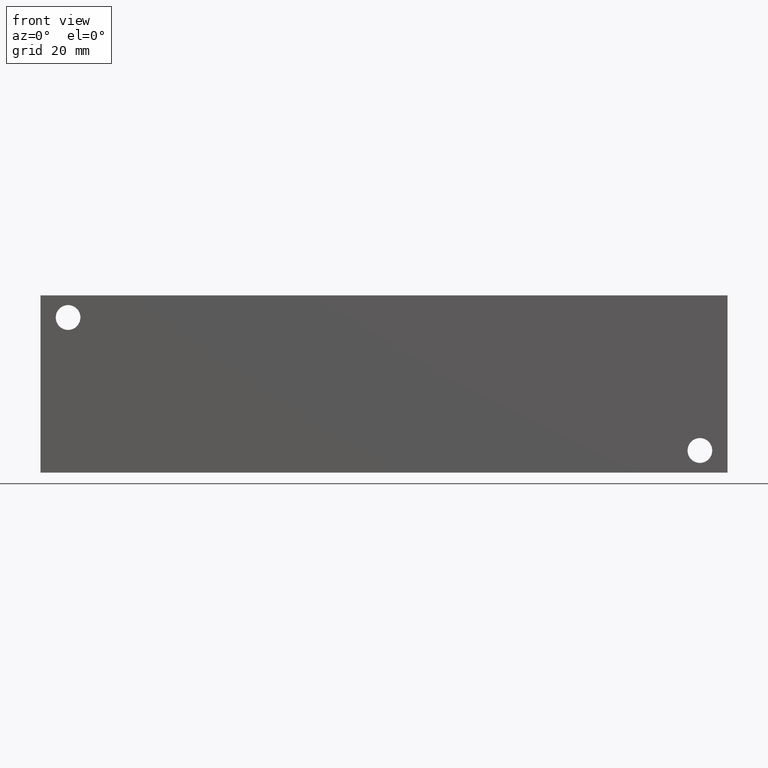
[diagram: clean part render]
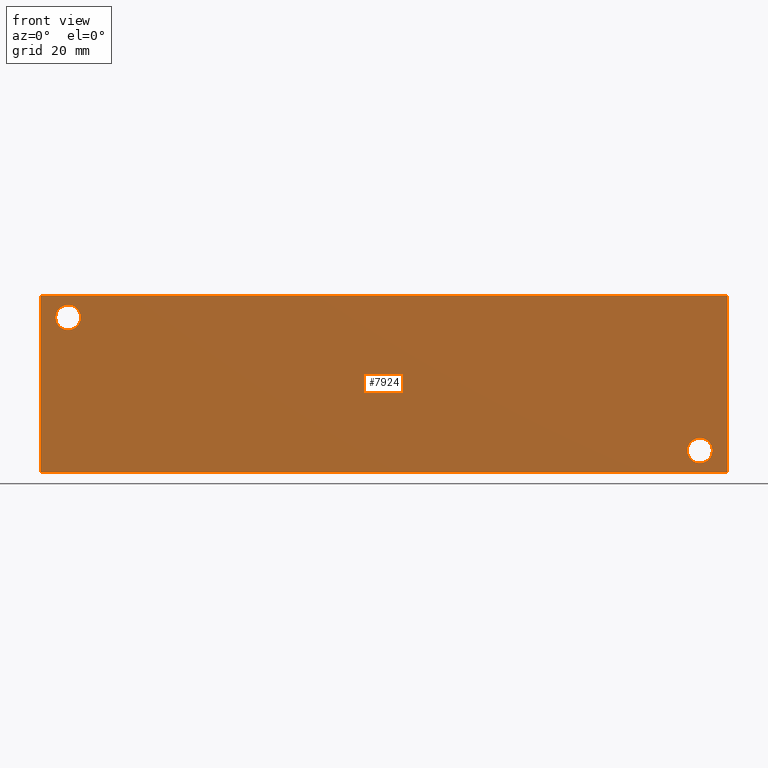
[diagram: same view with one face highlighted and labeled with its STEP entity id]
A machine part, front view. The second image highlights one B-rep face of the part: STEP entity #7924.
In plain terms, the highlighted planar face has unit normal (0, -1, 0).
Its self-contained STEP definition (entity closure, byte-faithful):
#94=CIRCLE('',#8155,3.5687);
#95=CIRCLE('',#8156,3.5687);
#97=CIRCLE('',#8164,3.5687);
#98=CIRCLE('',#8165,3.5687);
#261=FACE_BOUND('',#1347,.T.);
#262=FACE_BOUND('',#1348,.T.);
#486=PLANE('',#8358);
#892=FACE_OUTER_BOUND('',#1346,.T.);
#1346=EDGE_LOOP('',(#7058,#7059,#7060,#7061));
#1347=EDGE_LOOP('',(#7062,#7063));
#1348=EDGE_LOOP('',(#7064,#7065));
#1624=LINE('',#12427,#2343);
#2068=LINE('',#13751,#2787);
#2073=LINE('',#13760,#2792);
#2074=LINE('',#13762,#2793);
#2343=VECTOR('',#8755,10.);
#2787=VECTOR('',#9905,10.);
#2792=VECTOR('',#9914,10.);
#2793=VECTOR('',#9917,10.);
#3372=VERTEX_POINT('',#12425);
#3373=VERTEX_POINT('',#12426);
#3648=VERTEX_POINT('',#13362);
#3649=VERTEX_POINT('',#13363);
#3653=VERTEX_POINT('',#13378);
#3654=VERTEX_POINT('',#13379);
#3772=VERTEX_POINT('',#13749);
#3774=VERTEX_POINT('',#13758);
#4273=EDGE_CURVE('',#3372,#3373,#1624,.T.);
#4680=EDGE_CURVE('',#3648,#3649,#94,.T.);
#4681=EDGE_CURVE('',#3649,#3648,#95,.T.);
#4689=EDGE_CURVE('',#3653,#3654,#97,.T.);
#4690=EDGE_CURVE('',#3654,#3653,#98,.T.);
#4870=EDGE_CURVE('',#3772,#3372,#2068,.T.);
#4875=EDGE_CURVE('',#3774,#3373,#2073,.T.);
#4876=EDGE_CURVE('',#3772,#3774,#2074,.T.);
#7058=ORIENTED_EDGE('',*,*,#4876,.T.);
#7059=ORIENTED_EDGE('',*,*,#4875,.T.);
#7060=ORIENTED_EDGE('',*,*,#4273,.F.);
#7061=ORIENTED_EDGE('',*,*,#4870,.F.);
#7062=ORIENTED_EDGE('',*,*,#4680,.T.);
#7063=ORIENTED_EDGE('',*,*,#4681,.T.);
#7064=ORIENTED_EDGE('',*,*,#4689,.T.);
#7065=ORIENTED_EDGE('',*,*,#4690,.T.);
#7924=ADVANCED_FACE('',(#892,#261,#262),#486,.T.);
#8155=AXIS2_PLACEMENT_3D('',#13364,#9440,#9441);
#8156=AXIS2_PLACEMENT_3D('',#13365,#9442,#9443);
#8164=AXIS2_PLACEMENT_3D('',#13380,#9460,#9461);
#8165=AXIS2_PLACEMENT_3D('',#13381,#9462,#9463);
#8358=AXIS2_PLACEMENT_3D('',#13761,#9915,#9916);
#8755=DIRECTION('',(1.,0.,0.));
#9440=DIRECTION('center_axis',(0.,1.,0.));
#9441=DIRECTION('ref_axis',(1.,0.,0.));
#9442=DIRECTION('center_axis',(0.,1.,0.));
#9443=DIRECTION('ref_axis',(1.,0.,0.));
#9460=DIRECTION('center_axis',(0.,1.,0.));
#9461=DIRECTION('ref_axis',(1.,0.,0.));
#9462=DIRECTION('center_axis',(0.,1.,0.));
#9463=DIRECTION('ref_axis',(1.,0.,0.));
#9905=DIRECTION('',(0.,0.,1.));
#9914=DIRECTION('',(0.,0.,1.));
#9915=DIRECTION('center_axis',(0.,-1.,0.));
#9916=DIRECTION('ref_axis',(1.,0.,0.));
#9917=DIRECTION('',(1.,0.,0.));
#12425=CARTESIAN_POINT('',(0.,0.,50.8));
#12426=CARTESIAN_POINT('',(196.85,0.,50.8));
#12427=CARTESIAN_POINT('',(0.,0.,50.8));
#13362=CARTESIAN_POINT('',(11.4935,0.,44.45));
#13363=CARTESIAN_POINT('',(4.3561,0.,44.45));
#13364=CARTESIAN_POINT('Origin',(7.9248,0.,44.45));
#13365=CARTESIAN_POINT('Origin',(7.9248,0.,44.45));
#13378=CARTESIAN_POINT('',(192.4939,0.,6.35));
#13379=CARTESIAN_POINT('',(185.3565,0.,6.35));
#13380=CARTESIAN_POINT('Origin',(188.9252,0.,6.35));
#13381=CARTESIAN_POINT('Origin',(188.9252,0.,6.35));
#13749=CARTESIAN_POINT('',(0.,0.,0.));
#13751=CARTESIAN_POINT('',(0.,0.,0.));
#13758=CARTESIAN_POINT('',(196.85,0.,0.));
#13760=CARTESIAN_POINT('',(196.85,0.,0.));
#13761=CARTESIAN_POINT('Origin',(0.,0.,0.));
#13762=CARTESIAN_POINT('',(0.,0.,0.));